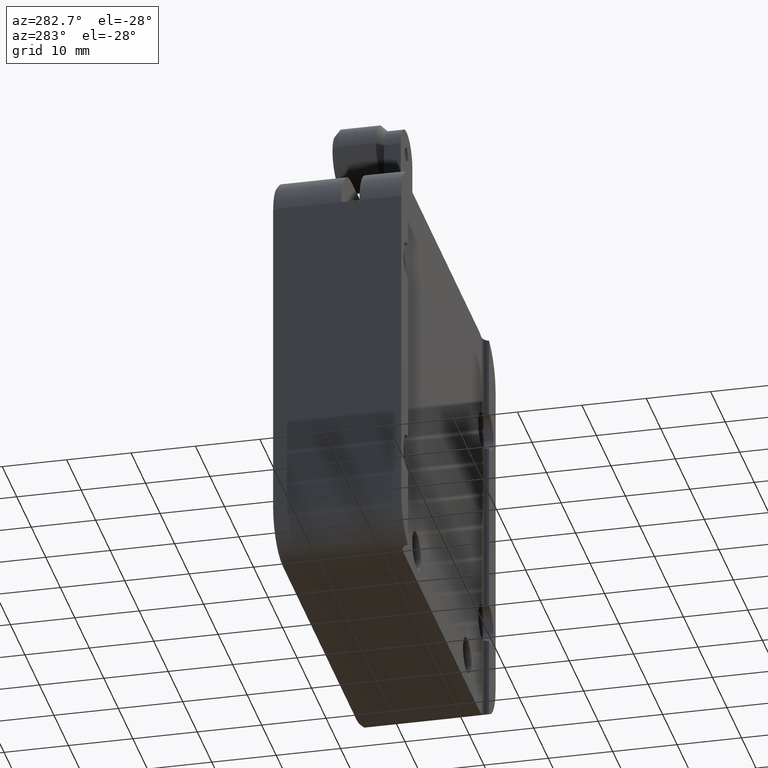
[diagram: clean part render]
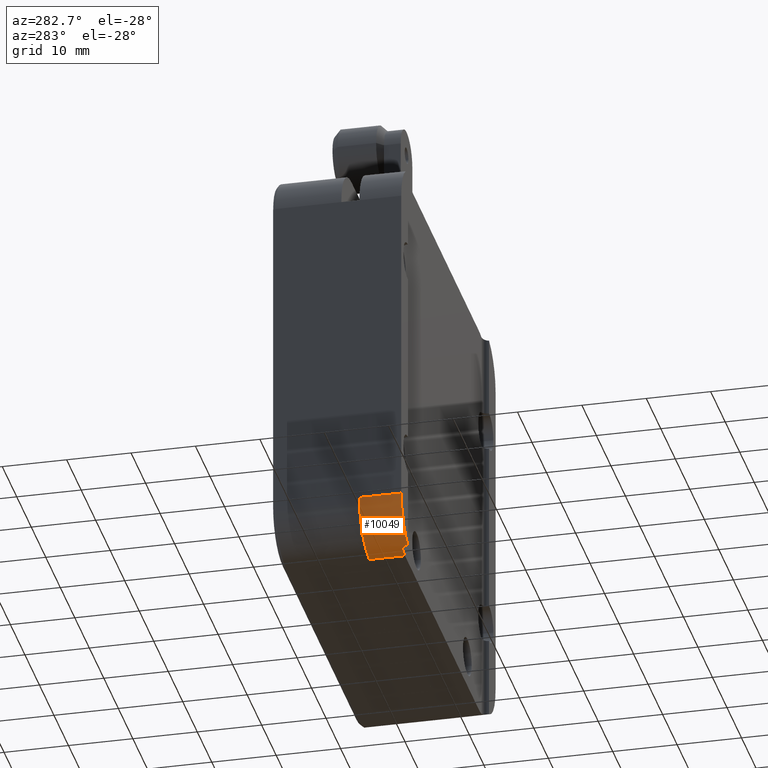
[diagram: same view with one face highlighted and labeled with its STEP entity id]
A machine part, auxiliary view. The second image highlights one B-rep face of the part: STEP entity #10049.
In plain terms, the highlighted cylindrical surface (partial cylindrical patch) has radius 7 mm, axis along (-0, 1, 0).
Its self-contained STEP definition (entity closure, byte-faithful):
#164 = DIRECTION ( 'NONE',  ( -1.734723475976805200E-018, 1.000000000000000000, 5.421010862427516400E-019 ) ) ;
#219 = CARTESIAN_POINT ( 'NONE',  ( -28.00000000000001800, -3.500000000000007500, -32.03834841531104200 ) ) ;
#253 = CARTESIAN_POINT ( 'NONE',  ( -27.79429557798188500, -2.878827217643852100, -32.11404867463970400 ) ) ;
#296 = VECTOR ( 'NONE', #164, 1000.000000000000000 ) ;
#417 = CIRCLE ( 'NONE', #6945, 7.000000000000006200 ) ;
#558 = FACE_OUTER_BOUND ( 'NONE', #7404, .T. ) ;
#938 = DIRECTION ( 'NONE',  ( 0.0000000000000000000, 0.0000000000000000000, 1.000000000000000000 ) ) ;
#992 = CARTESIAN_POINT ( 'NONE',  ( -32.50000000000002800, 3.000000000000005300, -25.50000000000002800 ) ) ;
#1070 = CARTESIAN_POINT ( 'NONE',  ( -28.00000000000001400, -3.365138604587100300, -32.03834841531104900 ) ) ;
#1111 = CARTESIAN_POINT ( 'NONE',  ( -27.49952328087132300, -2.624179226160088700, -32.20948546355845100 ) ) ;
#1141 = CARTESIAN_POINT ( 'NONE',  ( -32.50000000000002100, -3.750000000000004900, -25.50000000000001100 ) ) ;
#1359 = ORIENTED_EDGE ( 'NONE', *, *, #8084, .F. ) ;
#1520 = CARTESIAN_POINT ( 'NONE',  ( -27.00000000000001800, -2.500000000000007500, -32.33739716558869800 ) ) ;
#1947 = CARTESIAN_POINT ( 'NONE',  ( -27.13159367606918000, -2.500000000000009300, -32.30852791763902600 ) ) ;
#2140 = VERTEX_POINT ( 'NONE', #8018 ) ;
#2183 = ORIENTED_EDGE ( 'NONE', *, *, #10637, .F. ) ;
#2396 = EDGE_CURVE ( 'NONE', #8760, #6391, #3851, .T. ) ;
#2837 = B_SPLINE_CURVE_WITH_KNOTS ( 'NONE', 3,
 ( #219, #1070, #10333, #5318, #253, #6171, #1111, #7005, #1947, #7852 ),
 .UNSPECIFIED., .F., .F.,
 ( 4, 2, 2, 2, 4 ),
 ( 0.0000000000000000000, 0.0003986201477505664200, 0.0007972402955011328400, 0.001195860443251699200, 0.001594480591002265700 ),
 .UNSPECIFIED. ) ;
#3087 = CARTESIAN_POINT ( 'NONE',  ( -32.50000000000001400, -3.500000000000007500, -25.50000000000003600 ) ) ;
#3245 = CARTESIAN_POINT ( 'NONE',  ( -25.50000000000001400, -2.500000000000006200, -25.50000000000002100 ) ) ;
#3387 = CARTESIAN_POINT ( 'NONE',  ( -25.50000000000001400, -3.500000000000007500, -25.50000000000002100 ) ) ;
#3428 = DIRECTION ( 'NONE',  ( -1.734723475976805200E-018, 1.000000000000000000, 5.421010862427516400E-019 ) ) ;
#3851 = LINE ( 'NONE', #1141, #8307 ) ;
#4090 = DIRECTION ( 'NONE',  ( 0.0000000000000000000, 0.0000000000000000000, -1.000000000000000000 ) ) ;
#4224 = DIRECTION ( 'NONE',  ( 0.0000000000000000000, 0.0000000000000000000, -1.000000000000000000 ) ) ;
#4625 = CIRCLE ( 'NONE', #6854, 7.000000000000002700 ) ;
#4802 = DIRECTION ( 'NONE',  ( -1.734723475976805200E-018, 1.000000000000000000, -6.179952383167368300E-018 ) ) ;
#5318 = CARTESIAN_POINT ( 'NONE',  ( -27.86988855746649900, -2.989363237595870500, -32.08685261659411500 ) ) ;
#5454 = ORIENTED_EDGE ( 'NONE', *, *, #6969, .F. ) ;
#5669 = EDGE_CURVE ( 'NONE', #6391, #6523, #10335, .T. ) ;
#6088 = CARTESIAN_POINT ( 'NONE',  ( -25.50000000000001100, -3.750000000000004900, -32.50000000000005700 ) ) ;
#6103 = CARTESIAN_POINT ( 'NONE',  ( -25.50000000000001400, -2.500000000000007500, -32.50000000000002800 ) ) ;
#6171 = CARTESIAN_POINT ( 'NONE',  ( -27.60991958972920900, -2.697031018777065600, -32.17515328621952600 ) ) ;
#6227 = AXIS2_PLACEMENT_3D ( 'NONE', #3387, #9265, #4224 ) ;
#6244 = CYLINDRICAL_SURFACE ( 'NONE', #8043, 7.000000000000002700 ) ;
#6391 = VERTEX_POINT ( 'NONE', #3087 ) ;
#6500 = VERTEX_POINT ( 'NONE', #1520 ) ;
#6523 = VERTEX_POINT ( 'NONE', #7418 ) ;
#6854 = AXIS2_PLACEMENT_3D ( 'NONE', #9845, #4802, #10668 ) ;
#6945 = AXIS2_PLACEMENT_3D ( 'NONE', #3245, #9135, #4090 ) ;
#6969 = EDGE_CURVE ( 'NONE', #8026, #2140, #9008, .T. ) ;
#7005 = CARTESIAN_POINT ( 'NONE',  ( -27.26131941364513600, -2.526194218504452600, -32.27591635570905700 ) ) ;
#7029 = DIRECTION ( 'NONE',  ( 1.734723475976805200E-018, -1.000000000000000000, -5.421010862427516400E-019 ) ) ;
#7108 = ORIENTED_EDGE ( 'NONE', *, *, #7423, .F. ) ;
#7404 = EDGE_LOOP ( 'NONE', ( #9271, #9901, #2183, #5454, #7108, #1359 ) ) ;
#7418 = CARTESIAN_POINT ( 'NONE',  ( -28.00000000000001800, -3.500000000000007500, -32.03834841531104200 ) ) ;
#7423 = EDGE_CURVE ( 'NONE', #6500, #8026, #417, .T. ) ;
#7852 = CARTESIAN_POINT ( 'NONE',  ( -27.00000000000001800, -2.500000000000007500, -32.33739716558869800 ) ) ;
#8018 = CARTESIAN_POINT ( 'NONE',  ( -25.50000000000000700, 3.000000000000005300, -32.50000000000005000 ) ) ;
#8026 = VERTEX_POINT ( 'NONE', #6103 ) ;
#8043 = AXIS2_PLACEMENT_3D ( 'NONE', #8481, #3428, #938 ) ;
#8084 = EDGE_CURVE ( 'NONE', #6523, #6500, #2837, .T. ) ;
#8307 = VECTOR ( 'NONE', #7029, 1000.000000000000000 ) ;
#8481 = CARTESIAN_POINT ( 'NONE',  ( -25.50000000000001400, -3.750000000000005800, -25.50000000000001800 ) ) ;
#8760 = VERTEX_POINT ( 'NONE', #992 ) ;
#9008 = LINE ( 'NONE', #6088, #296 ) ;
#9135 = DIRECTION ( 'NONE',  ( 1.734723475976805200E-018, -1.000000000000000000, -5.421010862427516400E-019 ) ) ;
#9265 = DIRECTION ( 'NONE',  ( 1.734723475976805200E-018, -1.000000000000000000, 6.179952383167368300E-018 ) ) ;
#9271 = ORIENTED_EDGE ( 'NONE', *, *, #5669, .F. ) ;
#9845 = CARTESIAN_POINT ( 'NONE',  ( -25.50000000000001400, 3.000000000000006700, -25.50000000000003200 ) ) ;
#9901 = ORIENTED_EDGE ( 'NONE', *, *, #2396, .F. ) ;
#10049 = ADVANCED_FACE ( 'NONE', ( #558 ), #6244, .T. ) ;
#10333 = CARTESIAN_POINT ( 'NONE',  ( -27.97265693377471900, -3.232802517396403000, -32.04896685404647600 ) ) ;
#10335 = CIRCLE ( 'NONE', #6227, 7.000000000000006200 ) ;
#10637 = EDGE_CURVE ( 'NONE', #2140, #8760, #4625, .T. ) ;
#10668 = DIRECTION ( 'NONE',  ( 0.0000000000000000000, 0.0000000000000000000, 1.000000000000000000 ) ) ;